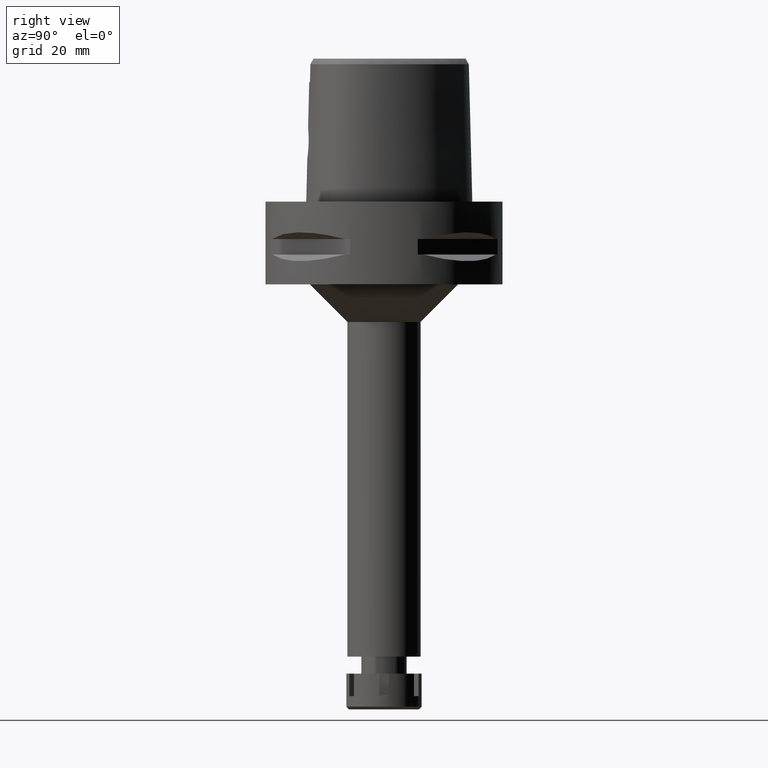
[diagram: clean part render]
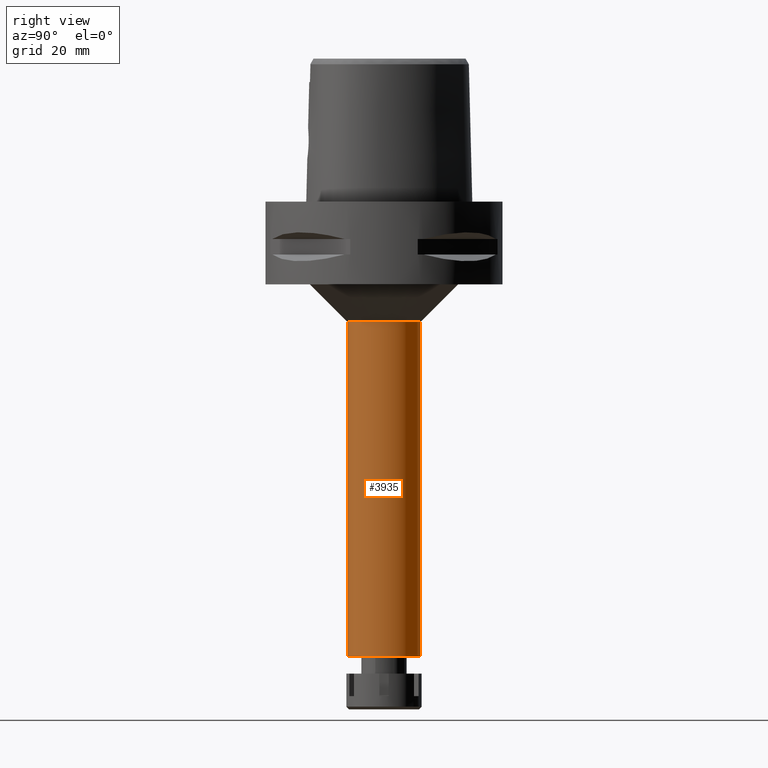
[diagram: same view with one face highlighted and labeled with its STEP entity id]
A machine part, right view. The second image highlights one B-rep face of the part: STEP entity #3935.
In plain terms, the highlighted cylindrical surface (partial cylindrical patch) has radius 9.75 mm, axis along (0, 0, -1).
Its self-contained STEP definition (entity closure, byte-faithful):
#37 = DIRECTION ( 'NONE',  ( 0.0000000000000000000, -1.000000000000000000, 0.0000000000000000000 ) ) ;
#62 = DIRECTION ( 'NONE',  ( 0.0000000000000000000, 0.0000000000000000000, 1.000000000000000000 ) ) ;
#86 = EDGE_CURVE ( 'NONE', #449, #5328, #3099, .T. ) ;
#102 = CARTESIAN_POINT ( 'NONE',  ( 0.0000000000000000000, 1.304248841091999852E-14, 6.500000000000000000 ) ) ;
#179 = AXIS2_PLACEMENT_3D ( 'NONE', #5212, #62, #37 ) ;
#216 = ORIENTED_EDGE ( 'NONE', *, *, #1747, .T. ) ;
#354 = DIRECTION ( 'NONE',  ( 0.0000000000000000000, 0.0000000000000000000, -1.000000000000000000 ) ) ;
#363 = CIRCLE ( 'NONE', #179, 9.750000000000000000 ) ;
#449 = VERTEX_POINT ( 'NONE', #1716 ) ;
#524 = CYLINDRICAL_SURFACE ( 'NONE', #2016, 9.750000000000000000 ) ;
#551 = DIRECTION ( 'NONE',  ( 0.0000000000000000000, 0.0000000000000000000, -1.000000000000000000 ) ) ;
#577 = DIRECTION ( 'NONE',  ( 0.0000000000000000000, 0.0000000000000000000, -1.000000000000000000 ) ) ;
#673 = AXIS2_PLACEMENT_3D ( 'NONE', #2287, #551, #2774 ) ;
#731 = CARTESIAN_POINT ( 'NONE',  ( 0.0000000000000000000, -9.750000000000000000, -32.00000000000000000 ) ) ;
#848 = VECTOR ( 'NONE', #354, 1000.000000000000000 ) ;
#911 = VERTEX_POINT ( 'NONE', #3274 ) ;
#996 = EDGE_CURVE ( 'NONE', #5328, #911, #5111, .T. ) ;
#1007 = DIRECTION ( 'NONE',  ( 0.0000000000000000000, 0.0000000000000000000, -1.000000000000000000 ) ) ;
#1247 = CARTESIAN_POINT ( 'NONE',  ( 0.0000000000000000000, -9.750000000000000000, -32.00000000000000000 ) ) ;
#1716 = CARTESIAN_POINT ( 'NONE',  ( 0.0000000000000000000, 9.750000000000000000, -32.00000000000000000 ) ) ;
#1747 = EDGE_CURVE ( 'NONE', #911, #4967, #363, .T. ) ;
#1973 = ORIENTED_EDGE ( 'NONE', *, *, #2358, .F. ) ;
#2016 = AXIS2_PLACEMENT_3D ( 'NONE', #102, #577, #4400 ) ;
#2287 = CARTESIAN_POINT ( 'NONE',  ( 0.0000000000000000000, 0.0000000000000000000, -32.00000000000000000 ) ) ;
#2358 = EDGE_CURVE ( 'NONE', #449, #4967, #4524, .T. ) ;
#2440 = VECTOR ( 'NONE', #1007, 1000.000000000000000 ) ;
#2567 = ORIENTED_EDGE ( 'NONE', *, *, #86, .T. ) ;
#2718 = FACE_OUTER_BOUND ( 'NONE', #3196, .T. ) ;
#2774 = DIRECTION ( 'NONE',  ( 0.0000000000000000000, 1.000000000000000000, 0.0000000000000000000 ) ) ;
#3099 = CIRCLE ( 'NONE', #673, 9.750000000000000000 ) ;
#3118 = CARTESIAN_POINT ( 'NONE',  ( 0.0000000000000000000, 9.750000000000000000, -32.00000000000000000 ) ) ;
#3196 = EDGE_LOOP ( 'NONE', ( #2567, #4029, #216, #1973 ) ) ;
#3274 = CARTESIAN_POINT ( 'NONE',  ( 0.0000000000000000000, -9.750000000000000000, -121.0000000000000000 ) ) ;
#3935 = ADVANCED_FACE ( 'NONE', ( #2718 ), #524, .T. ) ;
#4029 = ORIENTED_EDGE ( 'NONE', *, *, #996, .T. ) ;
#4400 = DIRECTION ( 'NONE',  ( 0.0000000000000000000, -1.000000000000000000, 0.0000000000000000000 ) ) ;
#4524 = LINE ( 'NONE', #3118, #2440 ) ;
#4967 = VERTEX_POINT ( 'NONE', #5166 ) ;
#5111 = LINE ( 'NONE', #1247, #848 ) ;
#5166 = CARTESIAN_POINT ( 'NONE',  ( 0.0000000000000000000, 9.750000000000000000, -121.0000000000000000 ) ) ;
#5212 = CARTESIAN_POINT ( 'NONE',  ( 0.0000000000000000000, 1.304248841091999852E-14, -121.0000000000000000 ) ) ;
#5328 = VERTEX_POINT ( 'NONE', #731 ) ;